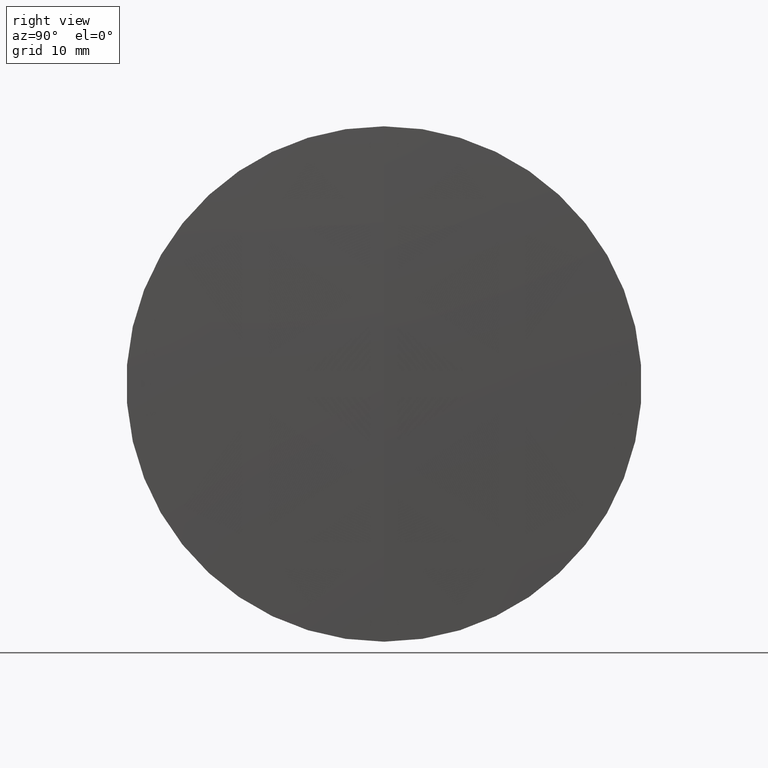
[diagram: clean part render]
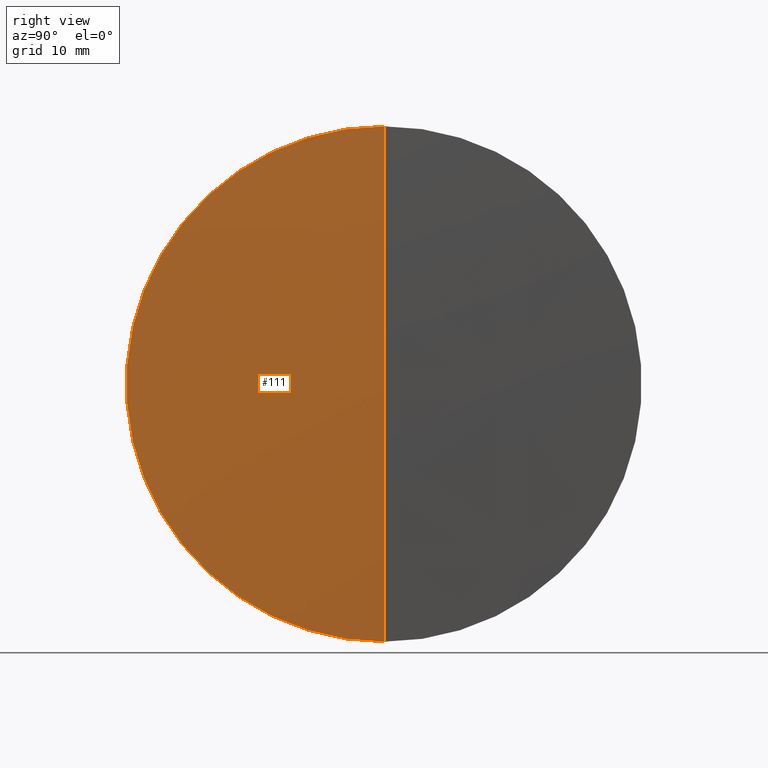
[diagram: same view with one face highlighted and labeled with its STEP entity id]
A machine part, right view. The second image highlights one B-rep face of the part: STEP entity #111.
In plain terms, the highlighted spherical surface has radius 859 mm.
Its self-contained STEP definition (entity closure, byte-faithful):
#4 = CARTESIAN_POINT ( 'NONE',  ( -190.6194407256768400, 0.0000000000000000000, 0.0000000000000000000 ) ) ;
#5 = DIRECTION ( 'NONE',  ( 0.0000000000000000000, 1.000000000000000000, 0.0000000000000000000 ) ) ;
#12 = CARTESIAN_POINT ( 'NONE',  ( 668.0049474674375500, 3.110602869834279600E-015, -25.40000000000000600 ) ) ;
#13 = AXIS2_PLACEMENT_3D ( 'NONE', #174, #232, #296 ) ;
#20 = ORIENTED_EDGE ( 'NONE', *, *, #94, .F. ) ;
#38 = FACE_OUTER_BOUND ( 'NONE', #340, .T. ) ;
#60 = DIRECTION ( 'NONE',  ( -1.000000000000000000, -0.0000000000000000000, -0.0000000000000000000 ) ) ;
#79 = CARTESIAN_POINT ( 'NONE',  ( 668.0049474674375500, 0.0000000000000000000, 0.0000000000000000000 ) ) ;
#94 = EDGE_CURVE ( 'NONE', #305, #136, #341, .T. ) ;
#111 = ADVANCED_FACE ( 'NONE', ( #38 ), #286, .T. ) ;
#136 = VERTEX_POINT ( 'NONE', #227 ) ;
#157 = DIRECTION ( 'NONE',  ( 0.0000000000000000000, 0.0000000000000000000, 1.000000000000000000 ) ) ;
#162 = EDGE_CURVE ( 'NONE', #204, #305, #237, .T. ) ;
#174 = CARTESIAN_POINT ( 'NONE',  ( -190.6194407256768400, 0.0000000000000000000, 0.0000000000000000000 ) ) ;
#185 = AXIS2_PLACEMENT_3D ( 'NONE', #79, #60, #315 ) ;
#198 = AXIS2_PLACEMENT_3D ( 'NONE', #255, #282, #254 ) ;
#204 = VERTEX_POINT ( 'NONE', #285 ) ;
#226 = EDGE_CURVE ( 'NONE', #204, #136, #267, .T. ) ;
#227 = CARTESIAN_POINT ( 'NONE',  ( 668.0049474674375500, 0.0000000000000000000, 25.40000000000000600 ) ) ;
#232 = DIRECTION ( 'NONE',  ( 0.0000000000000000000, -1.000000000000000000, 0.0000000000000000000 ) ) ;
#237 = CIRCLE ( 'NONE', #198, 859.0000000000000000 ) ;
#252 = AXIS2_PLACEMENT_3D ( 'NONE', #4, #5, #157 ) ;
#254 = DIRECTION ( 'NONE',  ( 0.0000000000000000000, -1.224646799147353200E-016, 1.000000000000000000 ) ) ;
#255 = CARTESIAN_POINT ( 'NONE',  ( -190.6194407256768400, 0.0000000000000000000, 0.0000000000000000000 ) ) ;
#267 = CIRCLE ( 'NONE', #13, 859.0000000000000000 ) ;
#282 = DIRECTION ( 'NONE',  ( -0.0000000000000000000, 1.000000000000000000, 1.224646799147353200E-016 ) ) ;
#285 = CARTESIAN_POINT ( 'NONE',  ( 668.3805592743231000, 0.0000000000000000000, 5.259858002337882200E-014 ) ) ;
#286 = SPHERICAL_SURFACE ( 'NONE', #252, 859.0000000000000000 ) ;
#289 = ORIENTED_EDGE ( 'NONE', *, *, #226, .T. ) ;
#296 = DIRECTION ( 'NONE',  ( 0.0000000000000000000, 0.0000000000000000000, -1.000000000000000000 ) ) ;
#305 = VERTEX_POINT ( 'NONE', #12 ) ;
#315 = DIRECTION ( 'NONE',  ( 0.0000000000000000000, 0.0000000000000000000, 1.000000000000000000 ) ) ;
#322 = ORIENTED_EDGE ( 'NONE', *, *, #162, .F. ) ;
#340 = EDGE_LOOP ( 'NONE', ( #322, #289, #20 ) ) ;
#341 = CIRCLE ( 'NONE', #185, 25.40000000000000600 ) ;